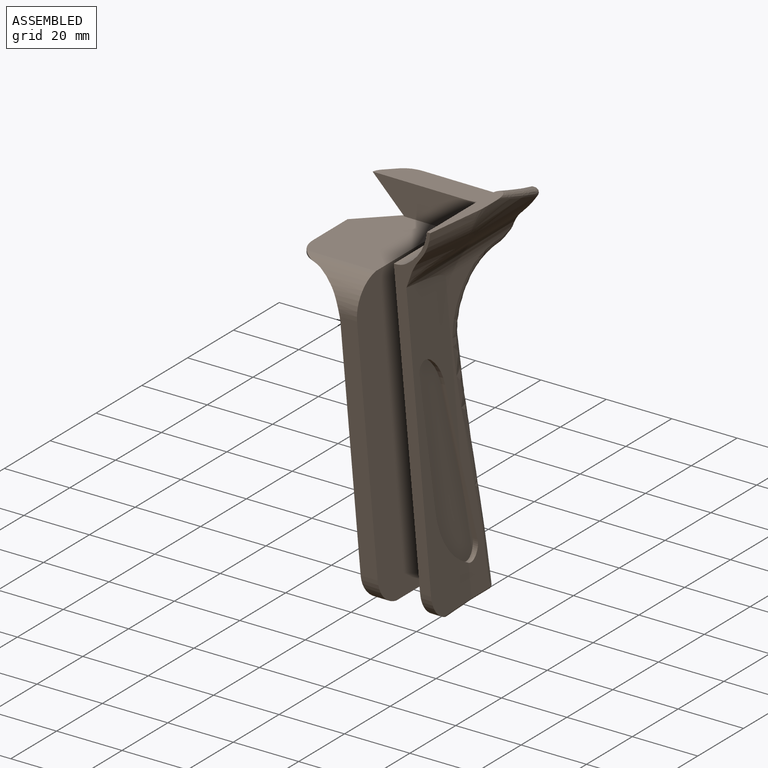
[diagram: assembled view]
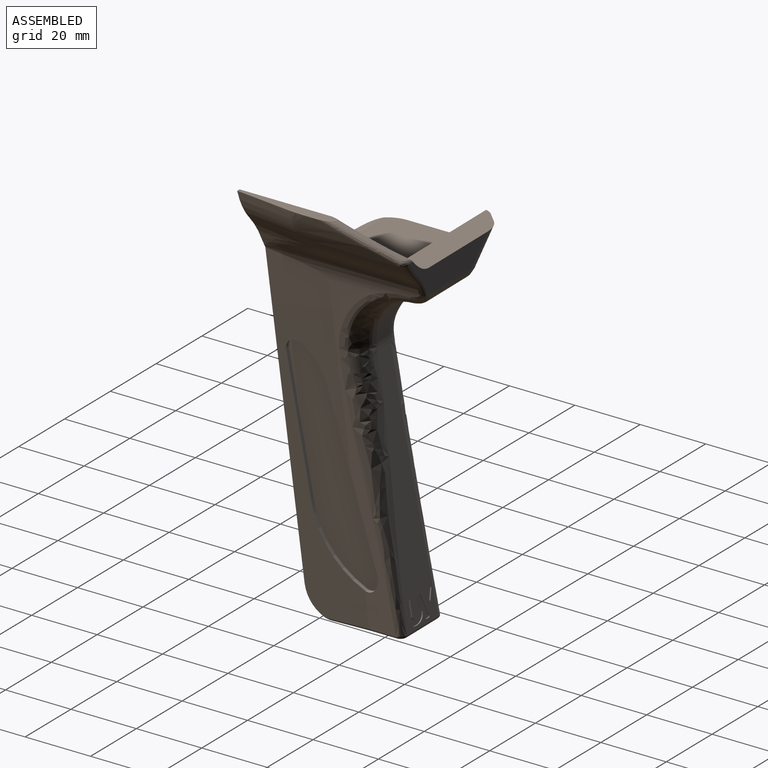
[diagram: assembled view, second angle]
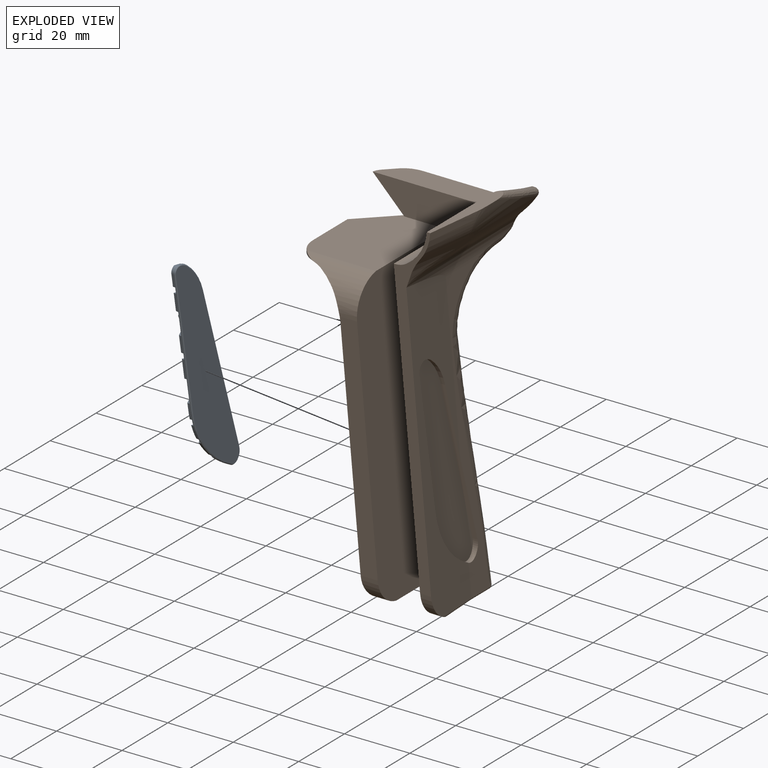
[diagram: exploded view]
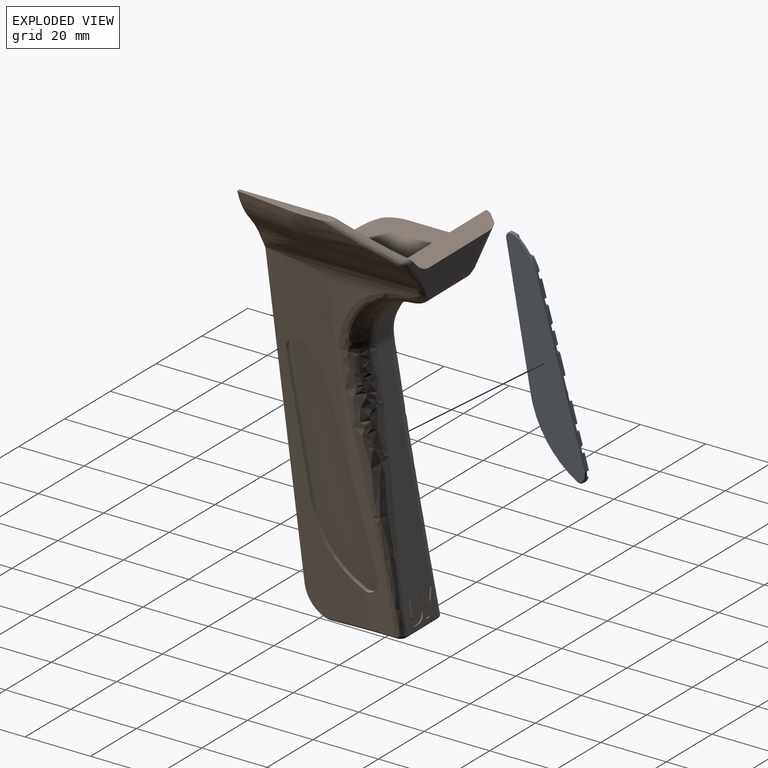
[diagram: exploded view, second angle]
ASSEMBLY  parts=2 mates=2
PART A: 139 faces, bbox 1.3x59.9x33.3 mm
  f0: cone r=45.21mm half-angle=45deg, axis (-1,0,0), area 1.3mm2, adj f1,f9,f14,f15
  f1: plane 38.82x12.64mm, normal (0.71,-0.22,0.67), area 14.6mm2, adj f0,f2,f15,f134
  f2: cone r=1.91mm half-angle=45deg, axis (-1,0,0), area 1.2mm2, adj f1,f3,f15,f138
  f3: plane 0.25x0.25mm, normal (0.71,0.71,0), area 0mm2, adj f2,f4,f15,f137
  f4: cone r=4.83mm half-angle=45deg, axis (-1,0,0), area 0.9mm2, adj f3,f5,f15,f136
  f5: cone r=18.17mm half-angle=45deg, axis (-1,0,0), area 4.1mm2, adj f4,f6,f15,f135
  f6: plane 46.43x21.25mm, normal (0.71,0.29,-0.64), area 18.3mm2, adj f5,f7,f10,f15
  f7: cone r=3.84mm half-angle=45deg, axis (-1,0,0), area 1.4mm2, adj f6,f8,f11,f15
  f8: cone r=1.78mm half-angle=45deg, axis (-1,0,0), area 0.7mm2, adj f7,f9,f12,f15
  f9: cone r=27.59mm half-angle=45deg, axis (-1,0,0), area 8.3mm2, adj f0,f8,f13,f15
  f10: plane 46.32x21.02mm, normal (0,0.41,-0.91), area 39mm2, adj f6,f11,f34,f35,f38,f39,f41,f42
  f11: cylinder r=3.84mm len=3.94mm, axis (1,0,0), area 2.9mm2, adj f7,f10,f12,f39,f59,f62,f101,f103
  f12: cylinder r=1.78mm len=1.95mm, axis (1,0,0), area 2.2mm2, adj f8,f11,f13,f39,f102,f103
  f13: cylinder r=27.59mm len=16.76mm, axis (1,0,0), area 18.7mm2, adj f9,f12,f14,f39,f47,f48,f49,f50
  f14: cylinder r=45.21mm len=3.47mm, axis (1,0,0), area 3.4mm2, adj f0,f13,f31,f32,f39,f134
  f15: plane 59.36x32.77mm, normal (1,0,0), area 641.4mm2, adj f0,f1,f2,f3,f4,f5,f6,f7
  f16: plane 2.72x1.57mm, normal (0,-0.5,-0.87), area 2.4mm2, adj f17,f19,f39,f134
  f17: plane 2.92x1.69mm, normal (0,0.5,-0.87), area 2.6mm2, adj f16,f18,f19,f39
  f18: plane 1.69x0.76mm, normal (0,1,0), area 1.3mm2, adj f17,f19,f39,f134
  f19: plane 5.65x3.38mm, normal (-1,0,0), area 9.4mm2, adj f16,f17,f18,f134
  f20: plane 3.37x0.76mm, normal (0,-1,0), area 2.6mm2, adj f21,f25,f26,f39
  f21: plane 2.92x1.69mm, normal (0,-0.5,-0.87), area 2.6mm2, adj f20,f22,f26,f39
  f22: plane 2.92x1.69mm, normal (0,0.5,-0.87), area 2.6mm2, adj f21,f23,f26,f39
  f23: plane 3.37x0.76mm, normal (0,1,0), area 2.6mm2, adj f22,f24,f26,f39
  f24: plane 2.92x1.69mm, normal (0,0.5,0.87), area 2.6mm2, adj f23,f25,f26,f39
  f25: plane 2.92x1.69mm, normal (0,-0.5,0.87), area 2.6mm2, adj f20,f24,f26,f39
  f26: plane 6.75x5.84mm, normal (-1,0,0), area 29.6mm2, adj f20,f21,f22,f23,f24,f25
  f27: plane 2.92x1.69mm, normal (0,-0.5,-0.87), area 2.6mm2, adj f28,f31,f32,f39
  f28: plane 2.92x1.69mm, normal (0,0.5,-0.87), area 2.6mm2, adj f27,f29,f32,f39
  f29: plane 3.37x0.76mm, normal (0,1,0), area 2.6mm2, adj f28,f30,f32,f39
  f30: plane 1.17x0.76mm, normal (0,0.5,0.87), area 1mm2, adj f29,f32,f39,f134
  f31: plane 2.43x0.76mm, normal (0,-1,0), area 1.9mm2, adj f14,f27,f32,f39
  f32: plane 5.84x5.73mm, normal (-1,0,0), area 24.6mm2, adj f14,f27,f28,f29,f30,f31,f134
  f33: plane 3.37x0.76mm, normal (0,-1,0), area 2.6mm2, adj f34,f37,f38,f39
  f34: plane 1.52x0.88mm, normal (0,-0.5,-0.87), area 1.3mm2, adj f10,f33,f38,f39
  f35: plane 2.29x0.76mm, normal (0,1,0), area 1.7mm2, adj f10,f36,f38,f39
  f36: plane 2.92x1.69mm, normal (0,0.5,0.87), area 2.6mm2, adj f35,f37,f38,f39
  f37: plane 2.92x1.69mm, normal (0,-0.5,0.87), area 2.6mm2, adj f33,f36,f38,f39
  f38: plane 5.94x5.84mm, normal (-1,0,0), area 24.9mm2, adj f10,f33,f34,f35,f36,f37
  f39: plane 59.79x32.47mm, normal (-1,0,0), area 265.5mm2, adj f10,f11,f12,f13,f14,f16,f17,f18
  f40: plane 3.37x0.76mm, normal (0,-1,0), area 2.6mm2, adj f39,f41,f44,f45
  f41: plane 0.76x0.27mm, normal (0,-0.5,-0.87), area 0.2mm2, adj f10,f39,f40,f45
  f42: plane 1x0.76mm, normal (0,1,0), area 0.8mm2, adj f10,f39,f43,f45
  f43: plane 2.92x1.69mm, normal (0,0.5,0.87), area 2.6mm2, adj f39,f42,f44,f45
  f44: plane 2.92x1.69mm, normal (0,-0.5,0.87), area 2.6mm2, adj f39,f40,f43,f45
  f45: plane 5.84x5.21mm, normal (-1,0,0), area 18.5mm2, adj f10,f40,f41,f42,f43,f44
  f46: plane 2.92x1.69mm, normal (0,0.5,-0.87), area 2.6mm2, adj f39,f47,f48,f49
  f47: plane 1.61x0.76mm, normal (0,1,0), area 1.2mm2, adj f13,f39,f46,f49
  f48: plane 1.21x0.76mm, normal (0,-0.5,-0.87), area 1.1mm2, adj f13,f39,f46,f49
  f49: plane 4.13x3.3mm, normal (-1,0,0), area 5.7mm2, adj f13,f46,f47,f48
  f50: plane 2.65x1.53mm, normal (0,-0.5,-0.87), area 2.3mm2, adj f13,f39,f51,f54
  f51: plane 2.92x1.69mm, normal (0,0.5,-0.87), area 2.6mm2, adj f39,f50,f52,f54
  f52: plane 3.37x0.76mm, normal (0,1,0), area 2.6mm2, adj f39,f51,f53,f54
  f53: plane 2.89x1.67mm, normal (0,0.5,0.87), area 2.5mm2, adj f13,f39,f52,f54
  f54: plane 6.73x5.57mm, normal (-1,0,0), area 24.2mm2, adj f13,f50,f51,f52,f53
  f55: plane 2.46x0.76mm, normal (0,-1,0), area 1.9mm2, adj f10,f39,f57,f58
  f56: plane 2.74x1.58mm, normal (0,0.5,0.87), area 2.4mm2, adj f10,f39,f57,f58
  f57: plane 2.92x1.69mm, normal (0,-0.5,0.87), area 2.6mm2, adj f39,f55,f56,f58
  f58: plane 5.66x4.15mm, normal (-1,0,0), area 11.6mm2, adj f10,f55,f56,f57
  f59: plane 1.14x0.76mm, normal (0,-1,0), area 0.9mm2, adj f11,f39,f61,f62
  f60: plane 1.48x0.86mm, normal (0,0.5,0.87), area 1.3mm2, adj f10,f39,f61,f62
  f61: plane 2.92x1.69mm, normal (0,-0.5,0.87), area 2.6mm2, adj f39,f59,f60,f62
  f62: plane 4.41x2.83mm, normal (-1,0,0), area 5.1mm2, adj f10,f11,f59,f60,f61
  f63: plane 2.92x1.69mm, normal (0,0.5,-0.87), area 2.6mm2, adj f39,f64,f65,f66
  f64: plane 1.33x0.76mm, normal (0,1,0), area 1mm2, adj f39,f63,f66,f134
  f65: plane 2.32x1.34mm, normal (0,-0.5,-0.87), area 2mm2, adj f39,f63,f66,f134
  f66: plane 5.24x3.01mm, normal (-1,0,0), area 7.4mm2, adj f63,f64,f65,f134
  f67: plane 3.37x0.76mm, normal (0,-1,0), area 2.6mm2, adj f39,f68,f72,f73
  f68: plane 2.92x1.69mm, normal (0,-0.5,-0.87), area 2.6mm2, adj f39,f67,f69,f73
  f69: plane 2.92x1.69mm, normal (0,0.5,-0.87), area 2.6mm2, adj f39,f68,f70,f73
  f70: plane 3.37x0.76mm, normal (0,1,0), area 2.6mm2, adj f39,f69,f71,f73
  f71: plane 2.92x1.69mm, normal (0,0.5,0.87), area 2.6mm2, adj f39,f70,f72,f73
  f72: plane 2.92x1.69mm, normal (0,-0.5,0.87), area 2.6mm2, adj f39,f67,f71,f73
  f73: plane 6.75x5.84mm, normal (-1,0,0), area 29.6mm2, adj f67,f68,f69,f70,f71,f72
  f74: plane 3.37x0.76mm, normal (0,-1,0), area 2.6mm2, adj f39,f75,f78,f79
  f75: plane 2.58x1.49mm, normal (0,-0.5,-0.87), area 2.3mm2, adj f39,f74,f79,f135
  f76: plane 2.45x0.76mm, normal (0,1,0), area 1.9mm2, adj f39,f77,f79,f135
  f77: plane 2.92x1.69mm, normal (0,0.5,0.87), area 2.6mm2, adj f39,f76,f78,f79
  f78: plane 2.92x1.69mm, normal (0,-0.5,0.87), area 2.6mm2, adj f39,f74,f77,f79
  f79: plane 6.55x5.84mm, normal (-1,0,0), area 27.8mm2, adj f74,f75,f76,f77,f78,f135
  f80: plane 2.92x1.69mm, normal (0,-0.5,-0.87), area 2.6mm2, adj f39,f81,f84,f85
  f81: plane 2.92x1.69mm, normal (0,0.5,-0.87), area 2.6mm2, adj f39,f80,f82,f85
  f82: plane 3.37x0.76mm, normal (0,1,0), area 2.6mm2, adj f39,f81,f83,f85
  f83: plane 0.85x0.76mm, normal (0,0.5,0.87), area 0.7mm2, adj f39,f82,f85,f134
  f84: plane 2.26x0.76mm, normal (0,-1,0), area 1.7mm2, adj f39,f80,f85,f134
  f85: plane 5.84x5.55mm, normal (-1,0,0), area 23.3mm2, adj f80,f81,f82,f83,f84,f134
  f86: plane 3.37x0.76mm, normal (0,-1,0), area 2.6mm2, adj f39,f87,f91,f92
  f87: plane 2.92x1.69mm, normal (0,-0.5,-0.87), area 2.6mm2, adj f39,f86,f88,f92
  f88: plane 2.92x1.69mm, normal (0,0.5,-0.87), area 2.6mm2, adj f39,f87,f89,f92
  f89: plane 3.37x0.76mm, normal (0,1,0), area 2.6mm2, adj f39,f88,f90,f92
  f90: plane 2.92x1.69mm, normal (0,0.5,0.87), area 2.6mm2, adj f39,f89,f91,f92
  f91: plane 2.92x1.69mm, normal (0,-0.5,0.87), area 2.6mm2, adj f39,f86,f90,f92
  f92: plane 6.75x5.84mm, normal (-1,0,0), area 29.6mm2, adj f86,f87,f88,f89,f90,f91
  f93: plane 1.48x0.76mm, normal (0,-1,0), area 1.1mm2, adj f10,f39,f95,f96
  f94: plane 1.79x1.03mm, normal (0,0.5,0.87), area 1.6mm2, adj f10,f39,f95,f96
  f95: plane 2.92x1.69mm, normal (0,-0.5,0.87), area 2.6mm2, adj f39,f93,f94,f96
  f96: plane 4.71x3.17mm, normal (-1,0,0), area 6.5mm2, adj f10,f93,f94,f95
  f97: plane 0.76x0.19mm, normal (0,-1,0), area 0.1mm2, adj f10,f39,f99,f100
  f98: plane 0.76x0.54mm, normal (0,0.5,0.87), area 0.5mm2, adj f10,f39,f99,f100
  f99: plane 2.92x1.69mm, normal (0,-0.5,0.87), area 2.6mm2, adj f39,f97,f98,f100
  f100: plane 3.46x1.88mm, normal (-1,0,0), area 1.2mm2, adj f10,f97,f98,f99
  f101: plane 1.29x0.76mm, normal (0,1,0), area 1mm2, adj f11,f39,f102,f103
  f102: plane 2.39x1.38mm, normal (0,0.5,0.87), area 2.1mm2, adj f12,f39,f101,f103
  f103: plane 2.67x2.46mm, normal (-1,0,0), area 3.6mm2, adj f11,f12,f101,f102
  f104: plane 2.91x1.68mm, normal (0,-0.5,-0.87), area 2.6mm2, adj f13,f39,f105,f108
  f105: plane 2.92x1.69mm, normal (0,0.5,-0.87), area 2.6mm2, adj f39,f104,f106,f108
  f106: plane 3.37x0.76mm, normal (0,1,0), area 2.6mm2, adj f39,f105,f107,f108
  f107: plane 1.74x1.01mm, normal (0,0.5,0.87), area 1.5mm2, adj f13,f39,f106,f108
  f108: plane 6.07x5.83mm, normal (-1,0,0), area 21.3mm2, adj f13,f104,f105,f106,f107
  f109: plane 3.37x0.76mm, normal (0,-1,0), area 2.6mm2, adj f39,f110,f113,f114
  f110: plane 2.47x1.43mm, normal (0,-0.5,-0.87), area 2.2mm2, adj f10,f39,f109,f114
  f111: plane 3.27x0.76mm, normal (0,1,0), area 2.5mm2, adj f10,f39,f112,f114
  f112: plane 2.92x1.69mm, normal (0,0.5,0.87), area 2.6mm2, adj f39,f111,f113,f114
  f113: plane 2.92x1.69mm, normal (0,-0.5,0.87), area 2.6mm2, adj f39,f109,f112,f114
  f114: plane 6.48x5.84mm, normal (-1,0,0), area 28.6mm2, adj f10,f109,f110,f111,f112,f113
  f115: plane 3.37x0.76mm, normal (0,-1,0), area 2.6mm2, adj f39,f116,f120,f121
  f116: plane 2.92x1.69mm, normal (0,-0.5,-0.87), area 2.6mm2, adj f39,f115,f117,f121
  f117: plane 2.92x1.69mm, normal (0,0.5,-0.87), area 2.6mm2, adj f39,f116,f118,f121
  f118: plane 3.37x0.76mm, normal (0,1,0), area 2.6mm2, adj f39,f117,f119,f121
  f119: plane 2.92x1.69mm, normal (0,0.5,0.87), area 2.6mm2, adj f39,f118,f120,f121
  f120: plane 2.92x1.69mm, normal (0,-0.5,0.87), area 2.6mm2, adj f39,f115,f119,f121
  f121: plane 6.75x5.84mm, normal (-1,0,0), area 29.6mm2, adj f115,f116,f117,f118,f119,f120
  f122: plane 2.92x1.69mm, normal (0,-0.5,-0.87), area 2.6mm2, adj f39,f123,f125,f126
  f123: plane 2.92x1.69mm, normal (0,0.5,-0.87), area 2.6mm2, adj f39,f122,f124,f126
  f124: plane 2.37x0.76mm, normal (0,1,0), area 1.8mm2, adj f39,f123,f126,f138
  f125: plane 1.9x0.76mm, normal (0,-1,0), area 1.4mm2, adj f39,f122,f126,f134
  f126: plane 5.84x4.86mm, normal (-1,0,0), area 20.5mm2, adj f122,f123,f124,f125,f134,f138
  f127: plane 3.37x0.76mm, normal (0,-1,0), area 2.6mm2, adj f39,f128,f132,f133
  f128: plane 2.92x1.69mm, normal (0,-0.5,-0.87), area 2.6mm2, adj f39,f127,f129,f133
  f129: plane 2.92x1.69mm, normal (0,0.5,-0.87), area 2.6mm2, adj f39,f128,f130,f133
  f130: plane 3.37x0.76mm, normal (0,1,0), area 2.6mm2, adj f39,f129,f131,f133
  f131: plane 2.92x1.69mm, normal (0,0.5,0.87), area 2.6mm2, adj f39,f130,f132,f133
  f132: plane 2.92x1.69mm, normal (0,-0.5,0.87), area 2.6mm2, adj f39,f127,f131,f133
  f133: plane 6.75x5.84mm, normal (-1,0,0), area 29.6mm2, adj f127,f128,f129,f130,f131,f132
  f134: plane 38.74x12.4mm, normal (0,-0.3,0.95), area 27.3mm2, adj f1,f14,f16,f18,f19,f30,f32,f39
  f135: cylinder r=18.17mm len=8.28mm, axis (1,0,0), area 6mm2, adj f5,f10,f39,f75,f76,f79,f136
  f136: cylinder r=4.83mm len=2.39mm, axis (1,0,0), area 0.6mm2, adj f4,f39,f135,f137
  f137: plane 0.25x0.06mm, normal (0,1,0), area 0mm2, adj f3,f39,f136,f138
  f138: cylinder r=1.91mm len=2.49mm, axis (1,0,0), area 2.7mm2, adj f2,f39,f124,f126,f134,f137
PART B: 118 faces, bbox 54.5x60.6x129.2 mm
  f0: plane 75.65x15.35mm, normal (0,0.99,0.16), area 660.2mm2, adj f3,f11,f52,f68,f102,f103,f104,f106
  f1: plane 30.87x13.68mm, normal (-0.99,0.12,0.02), area 115.4mm2, adj f4,f25,f72,f73,f92,f99,f100
  f2: plane 60.52x12.41mm, normal (-1,0,0), area 72.3mm2, adj f3,f4,f7,f59,f92
  f3: bspline ~75.03x17.25mm, area 464.8mm2, adj f0,f2,f33,f59,f67,f92,f93
  f4: cylinder r=10.16mm len=34.66mm, axis (0,-0.13,0.99), area 38.9mm2, adj f1,f2,f73,f92
  f5: plane 98.04x30.7mm, normal (1,0.05,0.01), area 1038.8mm2, adj f20,f21,f29,f36,f71,f84,f85,f86
  f6: plane 36.2x32.75mm, normal (0,0,1), area 715.8mm2, adj f9,f10,f12,f17,f28,f31,f32,f56
  f7: cylinder r=16.47mm len=31.4mm, axis (0,-1,0), area 317.8mm2, adj f2,f8,f10,f58,f61,f72,f73,f78
  f8: plane 25.27x4.36mm, normal (0,0,-1), area 90.9mm2, adj f7,f9,f60,f80
  f9: plane 15.28x0.97mm, normal (-1,0,0), area 11.8mm2, adj f6,f8,f12,f60,f80
  f10: cylinder r=9.78mm len=21.19mm, axis (1,0,0), area 172.2mm2, adj f6,f7,f23,f32,f72,f80
  f11: cylinder r=16.06mm len=20.16mm, axis (1,0,0), area 316mm2, adj f0,f16,f50,f51,f53,f56,f57,f58
  f12: plane 12.01x11.84mm, normal (-0.58,0.58,-0.58), area 5.9mm2, adj f6,f9,f56,f60,f61,f62,f79
  f13: plane 12.4x9.73mm, normal (-0.58,0.58,-0.58), area 51.2mm2, adj f18,f54,f56,f65
  f14: plane 18.89x6.88mm, normal (0,0.34,0.94), area 11.6mm2, adj f42,f43,f44,f45,f46
  f15: plane 34.26x11.14mm, normal (0,1,0), area 181.8mm2, adj f16,f18,f34,f44,f47,f48,f54,f81
  f16: cylinder r=4.58mm len=19.87mm, axis (1,0,0), area 129.6mm2, adj f11,f15,f49,f53
  f17: plane 35.29x9.75mm, normal (0,-1,0), area 296.7mm2, adj f6,f18,f28,f65
  f18: plane 48.86x35.59mm, normal (0,0,1), area 260.1mm2, adj f13,f15,f17,f21,f28,f54,f65,f81
  f19: cylinder r=14.44mm len=16.9mm, axis (0.21,0.98,0.01), area 122mm2, adj f57,f62,f63,f78
  f20: cylinder r=11.43mm len=46.88mm, axis (0,-1,0), area 326.3mm2, adj f5,f21,f35,f36,f41,f48,f49,f50
  f21: plane 108.61x14.11mm, normal (0,-0.99,-0.13), area 351.3mm2, adj f5,f18,f20,f22,f28,f29,f34,f37
  f22: plane 32.17x5.36mm, normal (0,0,1), area 79mm2, adj f21,f34,f35,f37,f39,f42,f43,f45
  f23: plane 75.42x9.68mm, normal (0,-0.99,-0.13), area 395.9mm2, adj f10,f25,f27,f32,f72
  f24: plane 24.19x12.97mm, normal (-0.99,0.12,0.02), area 164.4mm2, adj f25,f26,f74,f76,f95
  f25: plane 83.14x20.08mm, normal (-0.99,0.17,0.02), area 606mm2, adj f1,f23,f24,f26,f27,f72,f95,f96
  f26: plane 20.26x19.16mm, normal (0,0,-1), area 146.9mm2, adj f24,f25,f27,f28,f29,f30,f32,f66
  f27: cylinder r=10.16mm len=8.66mm, axis (1,0,0), area 58.8mm2, adj f23,f25,f26,f32
  f28: plane 104.72x41.24mm, normal (-1,0,0), area 2599.9mm2, adj f6,f17,f18,f21,f26,f29,f30,f31
  f29: cylinder r=10.16mm len=8.66mm, axis (1,0,0), area 39.8mm2, adj f5,f21,f26,f28,f71
  f30: plane 82.51x12.95mm, normal (0,-0.99,-0.13), area 1077.6mm2, adj f26,f28,f31,f32
  f31: cylinder r=11.05mm len=12.95mm, axis (-1,0,0), area 243.1mm2, adj f6,f28,f30,f32
  f32: plane 94.96x34.23mm, normal (1,0,0), area 2177.5mm2, adj f6,f10,f23,f26,f27,f30,f31
  f33: plane 14.28x7.62mm, normal (-1,0,0), area 62.8mm2, adj f3,f66,f74,f93,f94,f95
  f34: cylinder r=16.57mm len=50.45mm, axis (0,-1,0), area 584.3mm2, adj f15,f21,f22,f44,f45,f81
  f35: cylinder r=30.48mm len=30.68mm, axis (0,-1,0), area 373.3mm2, adj f20,f22,f39,f40,f42,f47
  f36: plane 95.17x21.72mm, normal (1,0,0), area 335.8mm2, adj f5,f20,f51,f52,f70,f71,f82,f83
  f37: cylinder r=17.42mm len=18.64mm, axis (0.12,0.99,0), area 172.2mm2, adj f21,f22,f38,f39
  f38: cylinder r=22.23mm len=20.75mm, axis (0.12,0.99,0), area 105.1mm2, adj f21,f37,f40,f41
  f39: bspline ~15.65x6.74mm, area 22.9mm2, adj f22,f35,f37,f40
  f40: bspline ~9.69x7.97mm, area 25.7mm2, adj f35,f38,f39,f41
  f41: bspline ~21.94x6.95mm, area 49.8mm2, adj f20,f21,f38,f40
  f42: bspline ~45.7x18.25mm, area 54.8mm2, adj f14,f22,f35,f43,f46
  f43: cylinder r=1.27mm len=1.62mm, axis (1,0,0), area 0.5mm2, adj f14,f22,f42,f45
  f44: cylinder r=1.27mm len=1.68mm, axis (1,0,0), area 1.5mm2, adj f14,f15,f34,f45,f46
  f45: bspline ~23.5x8.8mm, area 33.4mm2, adj f14,f22,f34,f43,f44
  f46: bspline ~2.92x2.03mm, area 4.5mm2, adj f14,f42,f44,f47
  f47: bspline ~6.91x5.9mm, area 19.1mm2, adj f15,f35,f46,f48
  f48: bspline ~6.36x4.34mm, area 13mm2, adj f15,f20,f47,f49
  f49: bspline ~4.57x4.53mm, area 23mm2, adj f16,f20,f48,f50
  f50: bspline ~11.08x5.81mm, area 55.7mm2, adj f11,f20,f49,f51
  f51: bspline ~22.27x16.84mm, area 192.6mm2, adj f11,f36,f50,f52
  f52: bspline ~78.77x19.61mm, area 525.5mm2, adj f0,f36,f51,f69
  f53: bspline ~5.08x4.81mm, area 0.7mm2, adj f11,f16,f54,f55
  f54: cylinder r=5.08mm len=12.68mm, axis (-0.71,0,0.71), area 56.2mm2, adj f13,f15,f18,f53,f55
  f55: bspline ~5.18x5.16mm, area 9.2mm2, adj f53,f54,f56
  f56: bspline ~7.57x7.03mm, area 20.8mm2, adj f6,f11,f12,f13,f55,f63,f64,f65
  f57: bspline ~15.13x10.52mm, area 54.6mm2, adj f11,f19,f64,f77
  f58: bspline ~5.33x5.27mm, area 12.5mm2, adj f7,f11,f59,f77
  f59: torus R=21.14mm, axis (-1,0,0), area 25.8mm2, adj f2,f3,f11,f58
  f60: cylinder r=1.52mm len=5.24mm, axis (0.71,0.71,0), area 8.1mm2, adj f8,f9,f12,f61
  f61: bspline ~2.66x2.6mm, area 3.5mm2, adj f7,f12,f60,f79
  f62: bspline ~3.44x3.4mm, area 4.9mm2, adj f12,f19,f63,f79
  f63: bspline ~4.55x2.91mm, area 2.8mm2, adj f19,f56,f62,f64
  f64: bspline ~2.69x0.8mm, area 0.3mm2, adj f56,f57,f63
  f65: cylinder r=5.08mm len=11.02mm, axis (0.71,0,-0.71), area 35mm2, adj f6,f13,f17,f18,f56
  f66: cylinder r=0.76mm len=6.18mm, axis (0,1,0), area 3.5mm2, adj f26,f33,f67,f75,f76
  f67: bspline ~2.36x2.3mm, area 3.7mm2, adj f3,f26,f66,f68
  f68: cylinder r=0.76mm len=13.66mm, axis (-1,0,0), area 18mm2, adj f0,f26,f67,f69
  f69: bspline ~2.88x2.29mm, area 3.6mm2, adj f26,f52,f68,f70
  f70: cylinder r=0.76mm len=8.17mm, axis (0,-1,0), area 9.8mm2, adj f26,f36,f69,f71
  f71: cylinder r=0.76mm len=13.3mm, axis (0.05,-1,0), area 14.3mm2, adj f5,f26,f29,f36,f70
  f72: bspline ~15.89x11.41mm, area 86.5mm2, adj f1,f7,f10,f23,f25,f73
  f73: bspline ~11.42x9.79mm, area 51.9mm2, adj f1,f4,f7,f72
  f74: cylinder r=10.16mm len=11.7mm, axis (0,-0.13,0.99), area 14mm2, adj f24,f33,f76,f95
  f75: bspline ~6.7x0.82mm, area 2.7mm2, adj f26,f66,f76
  f76: bspline ~1.45x0.76mm, area 0.5mm2, adj f24,f66,f74,f75
  f77: bspline ~11.33x8.93mm, area 56.3mm2, adj f11,f57,f58,f78
  f78: bspline ~17.41x15.95mm, area 101.2mm2, adj f7,f19,f77,f79
  f79: bspline ~6.48x6.17mm, area 4.4mm2, adj f12,f61,f62,f78
  f80: cylinder r=9mm len=8.68mm, axis (0,0,1), area 7mm2, adj f6,f7,f8,f9,f10
  f81: cylinder r=6.6mm len=49.01mm, axis (0,-1,0), area 191.1mm2, adj f15,f18,f21,f34
  f82: cylinder r=4.47mm len=4.5mm, axis (-1,-0.05,-0.01), area 7.1mm2, adj f36,f83,f84,f91
  f83: cylinder r=2.41mm len=2.8mm, axis (-1,-0.05,-0.01), area 4mm2, adj f36,f82,f90,f91
  f84: plane 48.65x14.96mm, normal (0.05,-0.95,-0.29), area 67.7mm2, adj f5,f36,f82,f85,f91
  f85: cylinder r=18.8mm len=9.52mm, axis (-1,-0.05,-0.01), area 15mm2, adj f5,f84,f86,f91
  f86: cylinder r=5.46mm len=2.71mm, axis (-1,-0.05,-0.01), area 3.7mm2, adj f5,f85,f87,f91
  f87: cylinder r=2.54mm len=3.01mm, axis (-1,-0.05,-0.01), area 6.1mm2, adj f5,f86,f88,f91
  f88: plane 40.02x7.38mm, normal (-0.05,0.98,0.18), area 51.7mm2, adj f5,f87,f89,f91
  f89: cylinder r=45.85mm len=3.67mm, axis (-1,-0.05,-0.01), area 4.8mm2, adj f5,f88,f90,f91
  f90: cylinder r=28.22mm len=17.52mm, axis (-1,-0.05,-0.01), area 30.2mm2, adj f5,f83,f89,f91
  f91: plane 64.42x27.23mm, normal (1,0.05,0.01), area 769mm2, adj f82,f83,f84,f85,f86,f87,f88,f89
  f92: plane 48.7x14.94mm, normal (-0.12,-0.95,-0.29), area 75.1mm2, adj f1,f2,f3,f4,f93,f100,f101
  f93: extruded ~4.51x2.13mm, area 9mm2, adj f3,f33,f92,f94,f101
  f94: extruded ~2.88x2.04mm, area 4.5mm2, adj f33,f93,f95,f101
  f95: extruded ~17.57x14.9mm, area 30.3mm2, adj f24,f25,f33,f74,f94,f96,f101
  f96: extruded ~3.68x1.38mm, area 5mm2, adj f25,f95,f97,f101
  f97: plane 40.04x7.43mm, normal (0.12,0.98,0.18), area 56.7mm2, adj f25,f96,f98,f101
  f98: extruded ~3.01x2.97mm, area 6.5mm2, adj f25,f97,f99,f101
  f99: extruded ~2.75x1.59mm, area 3.6mm2, adj f1,f25,f98,f100,f101
  f100: extruded ~9.54x6.69mm, area 14.9mm2, adj f1,f92,f99,f101
  f101: plane 64.45x26.81mm, normal (-0.99,0.12,0.02), area 757.2mm2, adj f92,f93,f94,f95,f96,f97,f98,f99
  f102: plane 2.53x0.38mm, normal (0,0.16,-0.99), area 1mm2, adj f0,f103,f104,f105
  f103: plane 3.52x1.24mm, normal (-0.94,-0.05,0.33), area 1.4mm2, adj f0,f102,f104,f105
  f104: plane 3.52x1.28mm, normal (0.94,-0.06,0.34), area 1.4mm2, adj f0,f102,f103,f105
  f105: plane 3.46x2.53mm, normal (0,0.99,0.16), area 4.4mm2, adj f102,f103,f104
  f106: extruded ~6.19x2.69mm, area 3.4mm2, adj f0,f107,f116,f117
  f107: plane 2.54x0.95mm, normal (-0.94,-0.06,0.35), area 1mm2, adj f0,f106,f108,f117
  f108: plane 1.42x0.38mm, normal (0,-0.16,0.99), area 0.5mm2, adj f0,f107,f109,f117
  f109: plane 0.43x0.41mm, normal (0.94,-0.05,0.32), area 0.1mm2, adj f0,f108,f110,f117
  f110: plane 6.8x2.42mm, normal (0.94,0.05,-0.33), area 2.8mm2, adj f0,f109,f111,f117
  f111: plane 1.75x0.38mm, normal (0,0.16,-0.99), area 0.7mm2, adj f0,f110,f112,f117
  f112: plane 4.17x1.05mm, normal (-1,0,0), area 1.6mm2, adj f0,f111,f113,f117
  f113: extruded ~2.79x1.68mm, area 1.9mm2, adj f0,f112,f114,f117
  f114: plane 4.17x1.05mm, normal (1,0,0), area 1.6mm2, adj f0,f113,f115,f117
  f115: plane 1.73x0.38mm, normal (0,0.16,-0.99), area 0.7mm2, adj f0,f114,f116,f117
  f116: plane 4.87x1.16mm, normal (-1,0,0), area 1.9mm2, adj f0,f106,f115,f117
  f117: plane 8.68x7.25mm, normal (0,0.99,0.16), area 35.1mm2, adj f106,f107,f108,f109,f110,f111,f112,f113
PLACE A rot(axis=(1,-0.05,-0.08),82.8deg) t=(-31.43,-83.32,29.28)mm
PLACE B rot(axis=(0.12,0.98,0.18),0.4deg) t=(-24.2,-36.35,16.37)mm
MATE planar A.f15 <-> B.f101  axis (0.99,-0.12,-0.02) through (-32.84,-32.01,-27.4)mm
MATE planar A.f134 <-> B.f97  axis (-0.12,-0.98,-0.18) through (-34.32,-40.62,-14.98)mm
